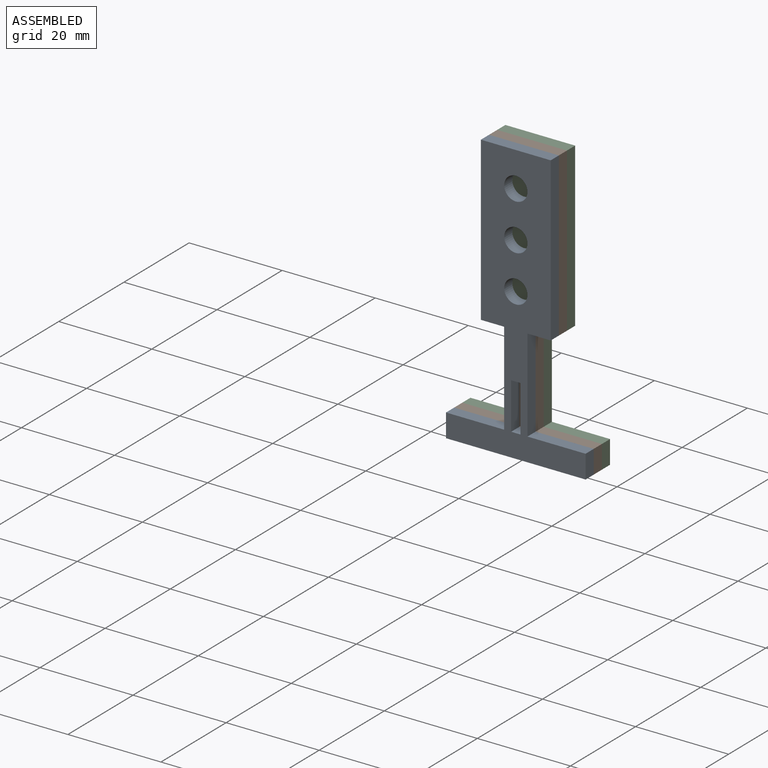
[diagram: assembled view]
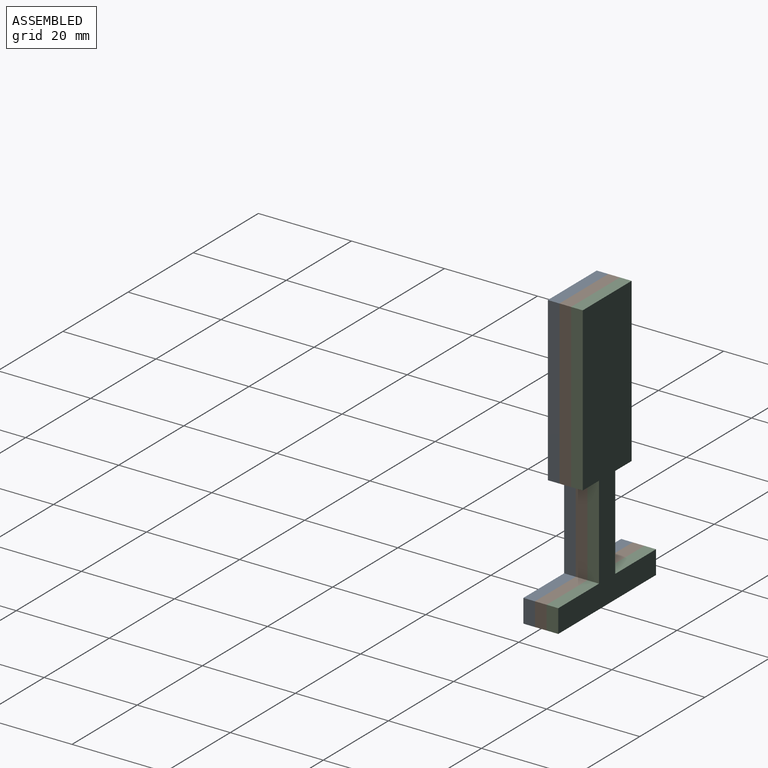
[diagram: assembled view, second angle]
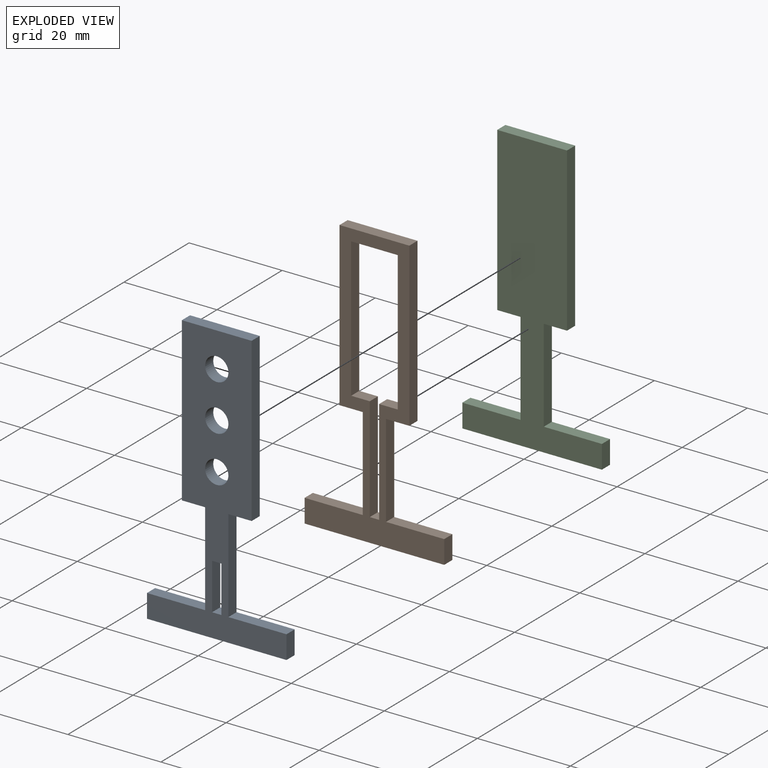
[diagram: exploded view]
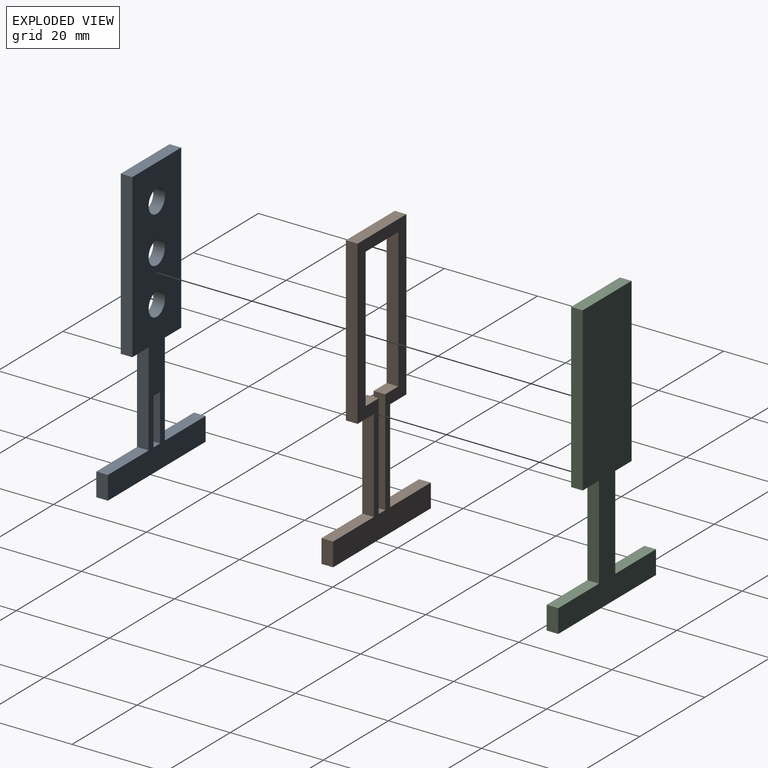
[diagram: exploded view, second angle]
ASSEMBLY  parts=3 mates=2
PART A: 21 faces, bbox 30x2.5x60 mm
  f0: plane 5x2.5mm, normal (-1,0,0), area 12.5mm2, adj f1,f16,f19,f20
  f1: plane 30x2.5mm, normal (0,0,-1), area 75mm2, adj f0,f2,f19,f20
  f2: plane 5x2.5mm, normal (1,0,0), area 12.5mm2, adj f1,f3,f19,f20
  f3: plane 12.5x2.5mm, normal (0,0,1), area 31.2mm2, adj f2,f4,f19,f20
  f4: plane 20x2.5mm, normal (1,0,0), area 50mm2, adj f3,f5,f19,f20
  f5: plane 5x2.5mm, normal (0,0,-1), area 12.5mm2, adj f4,f6,f19,f20
  f6: plane 35x2.5mm, normal (1,0,0), area 87.5mm2, adj f5,f7,f19,f20
  f7: plane 15x2.5mm, normal (0,0,1), area 37.5mm2, adj f6,f8,f19,f20
  f8: plane 35x2.5mm, normal (-1,0,0), area 87.5mm2, adj f7,f9,f19,f20
  f9: plane 5x2.5mm, normal (0,0,-1), area 12.5mm2, adj f8,f10,f19,f20
  f10: plane 20x2.5mm, normal (-1,0,0), area 50mm2, adj f9,f16,f19,f20
  f11: plane 2.5x2mm, normal (0,0,1), area 5mm2, adj f12,f17,f19,f20
  f12: plane 10x2.5mm, normal (1,0,0), area 25mm2, adj f11,f13,f19,f20
  f13: plane 2.5x2mm, normal (0,0,-1), area 5mm2, adj f12,f17,f19,f20
  f14: cylinder r=2.5mm len=5mm, axis (0,1,0), area 39.3mm2, adj f19,f20
  f15: cylinder r=2.5mm len=5mm, axis (0,1,0), area 39.3mm2, adj f19,f20
  f16: plane 12.5x2.5mm, normal (0,0,1), area 31.2mm2, adj f0,f10,f19,f20
  f17: plane 10x2.5mm, normal (-1,0,0), area 25mm2, adj f11,f13,f19,f20
  f18: cylinder r=2.5mm len=5mm, axis (0,1,0), area 39.3mm2, adj f19,f20
  f19: plane 60x30mm, normal (0,-1,0), area 696.1mm2, adj f0,f1,f2,f3,f4,f5,f6,f7
  f20: plane 60x30mm, normal (0,1,0), area 696.1mm2, adj f0,f1,f2,f3,f4,f5,f6,f7
PART B: 22 faces, bbox 30x2.5x60 mm
  f0: plane 5x2.5mm, normal (-1,0,0), area 12.5mm2, adj f1,f19,f20,f21
  f1: plane 30x2.5mm, normal (0,0,-1), area 75mm2, adj f0,f2,f20,f21
  f2: plane 5x2.5mm, normal (1,0,0), area 12.5mm2, adj f1,f3,f20,f21
  f3: plane 12.5x2.5mm, normal (0,0,1), area 31.2mm2, adj f2,f4,f20,f21
  f4: plane 20x2.5mm, normal (1,0,0), area 50mm2, adj f3,f5,f20,f21
  f5: plane 5x2.5mm, normal (0,0,-1), area 12.5mm2, adj f4,f6,f20,f21
  f6: plane 35x2.5mm, normal (1,0,0), area 87.5mm2, adj f5,f7,f20,f21
  f7: plane 15x2.5mm, normal (0,0,1), area 37.5mm2, adj f6,f8,f20,f21
  f8: plane 35x2.5mm, normal (-1,0,0), area 87.5mm2, adj f7,f9,f20,f21
  f9: plane 5x2.5mm, normal (0,0,-1), area 12.5mm2, adj f8,f10,f20,f21
  f10: plane 20x2.5mm, normal (-1,0,0), area 50mm2, adj f9,f19,f20,f21
  f11: plane 2.5x2mm, normal (0,0,1), area 5mm2, adj f12,f18,f20,f21
  f12: plane 22.5x2.5mm, normal (1,0,0), area 56.2mm2, adj f11,f13,f20,f21
  f13: plane 4x2.5mm, normal (0,0,1), area 10mm2, adj f12,f14,f20,f21
  f14: plane 30x2.5mm, normal (1,0,0), area 75mm2, adj f13,f15,f20,f21
  f15: plane 10x2.5mm, normal (0,0,-1), area 25mm2, adj f14,f16,f20,f21
  f16: plane 30x2.5mm, normal (-1,0,0), area 75mm2, adj f15,f17,f20,f21
  f17: plane 4x2.5mm, normal (0,0,1), area 10mm2, adj f16,f18,f20,f21
  f18: plane 22.5x2.5mm, normal (-1,0,0), area 56.2mm2, adj f11,f17,f20,f21
  f19: plane 12.5x2.5mm, normal (0,0,1), area 31.2mm2, adj f0,f10,f20,f21
  f20: plane 60x30mm, normal (0,-1,0), area 430mm2, adj f0,f1,f2,f3,f4,f5,f6,f7
  f21: plane 60x30mm, normal (0,1,0), area 430mm2, adj f0,f1,f2,f3,f4,f5,f6,f7
PART C: 14 faces, bbox 30x2.5x60 mm
  f0: plane 5x2.5mm, normal (-1,0,0), area 12.5mm2, adj f1,f11,f12,f13
  f1: plane 30x2.5mm, normal (0,0,-1), area 75mm2, adj f0,f2,f12,f13
  f2: plane 5x2.5mm, normal (1,0,0), area 12.5mm2, adj f1,f3,f12,f13
  f3: plane 12.5x2.5mm, normal (0,0,1), area 31.2mm2, adj f2,f4,f12,f13
  f4: plane 20x2.5mm, normal (1,0,0), area 50mm2, adj f3,f5,f12,f13
  f5: plane 5x2.5mm, normal (0,0,-1), area 12.5mm2, adj f4,f6,f12,f13
  f6: plane 35x2.5mm, normal (1,0,0), area 87.5mm2, adj f5,f7,f12,f13
  f7: plane 15x2.5mm, normal (0,0,1), area 37.5mm2, adj f6,f8,f12,f13
  f8: plane 35x2.5mm, normal (-1,0,0), area 87.5mm2, adj f7,f9,f12,f13
  f9: plane 5x2.5mm, normal (0,0,-1), area 12.5mm2, adj f8,f10,f12,f13
  f10: plane 20x2.5mm, normal (-1,0,0), area 50mm2, adj f9,f11,f12,f13
  f11: plane 12.5x2.5mm, normal (0,0,1), area 31.2mm2, adj f0,f10,f12,f13
  f12: plane 60x30mm, normal (0,-1,0), area 775mm2, adj f0,f1,f2,f3,f4,f5,f6,f7
  f13: plane 60x30mm, normal (0,1,0), area 775mm2, adj f0,f1,f2,f3,f4,f5,f6,f7
PLACE A at identity fixed
PLACE B t=(0,2.5,0)mm
PLACE C t=(0,5,0)mm
MATE fastened B.f20 <-> A.f20  axis (0,-1,0) through (15,0,5)mm
MATE fastened C.f12 <-> B.f21  axis (0,-1,0) through (15,2.5,5)mm
